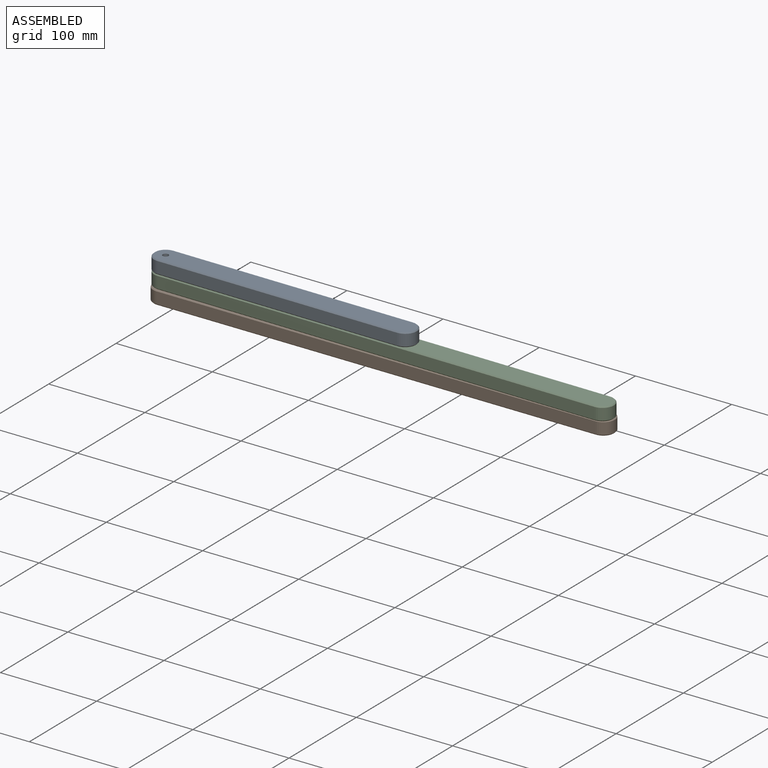
[diagram: assembled view]
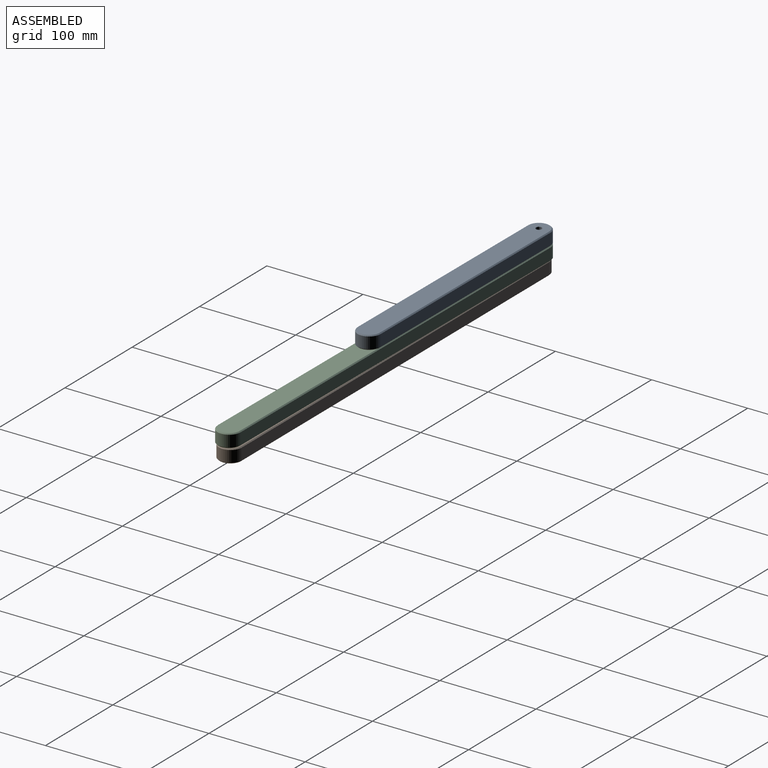
[diagram: assembled view, second angle]
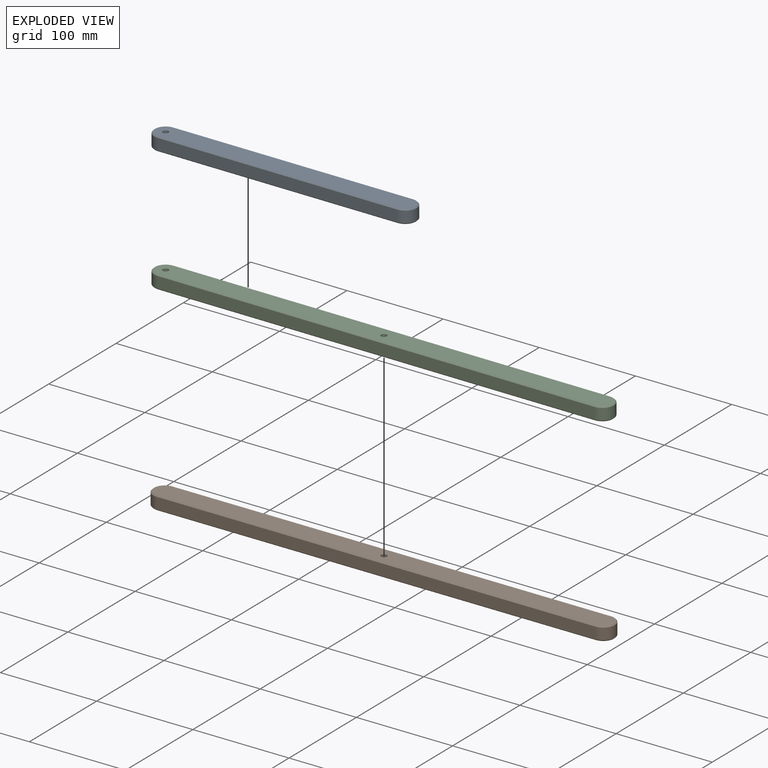
[diagram: exploded view]
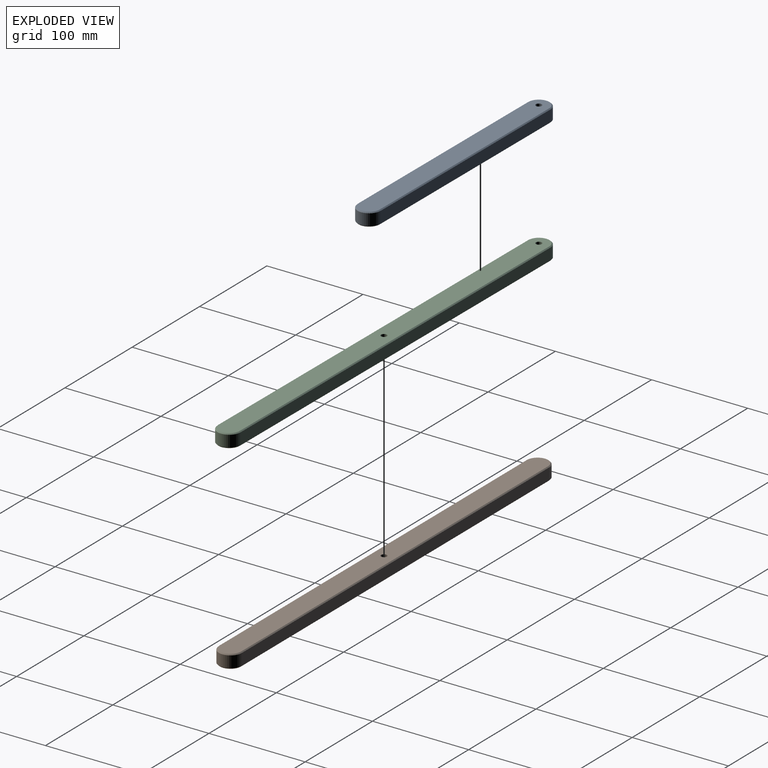
[diagram: exploded view, second angle]
ASSEMBLY  parts=3 mates=2
PART A: 15 faces, bbox 274x24x14 mm
  f0: cylinder r=12mm len=24mm, axis (0,0,-1), area 452.4mm2, adj f1,f3,f8,f12
  f1: plane 250x12mm, normal (0,-1,0), area 3000mm2, adj f0,f2,f7,f11
  f2: cylinder r=12mm len=24mm, axis (0,0,-1), area 452.4mm2, adj f1,f3,f9,f13
  f3: plane 250x12mm, normal (0,1,0), area 3000mm2, adj f0,f2,f10,f14
  f4: cylinder r=3mm len=14mm, axis (0,0,-1), area 263.9mm2, adj f5,f6
  f5: plane 272x22mm, normal (0,0,1), area 5851.9mm2, adj f4,f11,f12,f13,f14
  f6: plane 272x22mm, normal (0,0,-1), area 5851.9mm2, adj f4,f7,f8,f9,f10
  f7: plane 250x1mm, normal (0,-0.71,-0.71), area 353.6mm2, adj f1,f6,f8,f9
  f8: cone r=12mm half-angle=45deg, axis (0,0,1), area 51.1mm2, adj f0,f6,f7,f10
  f9: cone r=12mm half-angle=45deg, axis (0,0,1), area 51.1mm2, adj f2,f6,f7,f10
  f10: plane 250x1mm, normal (0,0.71,-0.71), area 353.6mm2, adj f3,f6,f8,f9
  f11: plane 250x1mm, normal (0,-0.71,0.71), area 353.6mm2, adj f1,f5,f12,f13
  f12: cone r=11mm half-angle=45deg, axis (0,0,-1), area 51.1mm2, adj f0,f5,f11,f14
  f13: cone r=11mm half-angle=45deg, axis (0,0,-1), area 51.1mm2, adj f2,f5,f11,f14
  f14: plane 250x1mm, normal (0,0.71,0.71), area 353.6mm2, adj f3,f5,f12,f13
PART B: 15 faces, bbox 480x24x14 mm
  f0: cylinder r=12mm len=24mm, axis (0,0,-1), area 452.4mm2, adj f1,f3,f7,f11
  f1: plane 456x12mm, normal (0,1,0), area 5472mm2, adj f0,f2,f8,f12
  f2: cylinder r=12mm len=24mm, axis (0,0,-1), area 452.4mm2, adj f1,f3,f10,f14
  f3: plane 456x12mm, normal (0,-1,0), area 5472mm2, adj f0,f2,f9,f13
  f4: cylinder r=3mm len=14mm, axis (0,0,-1), area 263.9mm2, adj f5,f6
  f5: plane 478x22mm, normal (0,0,1), area 10383.9mm2, adj f4,f11,f12,f13,f14
  f6: plane 478x22mm, normal (0,0,-1), area 10383.9mm2, adj f4,f7,f8,f9,f10
  f7: cone r=12mm half-angle=45deg, axis (0,0,1), area 51.1mm2, adj f0,f6,f8,f9
  f8: plane 456x1mm, normal (0,0.71,-0.71), area 644.9mm2, adj f1,f6,f7,f10
  f9: plane 456x1mm, normal (0,-0.71,-0.71), area 644.9mm2, adj f3,f6,f7,f10
  f10: cone r=12mm half-angle=45deg, axis (0,0,1), area 51.1mm2, adj f2,f6,f8,f9
  f11: cone r=11mm half-angle=45deg, axis (0,0,-1), area 51.1mm2, adj f0,f5,f12,f13
  f12: plane 456x1mm, normal (0,0.71,0.71), area 644.9mm2, adj f1,f5,f11,f14
  f13: plane 456x1mm, normal (0,-0.71,0.71), area 644.9mm2, adj f3,f5,f11,f14
  f14: cone r=11mm half-angle=45deg, axis (0,0,-1), area 51.1mm2, adj f2,f5,f12,f13
PART C: 16 faces, bbox 480x24x14 mm
  f0: cylinder r=12mm len=24mm, axis (0,0,-1), area 452.4mm2, adj f1,f4,f9,f12
  f1: plane 456x12mm, normal (0,-1,0), area 5472mm2, adj f0,f2,f8,f13
  f2: cylinder r=12mm len=24mm, axis (0,0,-1), area 452.4mm2, adj f1,f4,f10,f15
  f3: cylinder r=3mm len=14mm, axis (0,0,-1), area 263.9mm2, adj f6,f7
  f4: plane 456x12mm, normal (0,1,0), area 5472mm2, adj f0,f2,f11,f14
  f5: cylinder r=3mm len=14mm, axis (0,0,-1), area 263.9mm2, adj f6,f7
  f6: plane 478x22mm, normal (0,0,1), area 10355.6mm2, adj f3,f5,f12,f13,f14,f15
  f7: plane 478x22mm, normal (0,0,-1), area 10355.6mm2, adj f3,f5,f8,f9,f10,f11
  f8: plane 456x1mm, normal (0,-0.71,-0.71), area 644.9mm2, adj f1,f7,f9,f10
  f9: cone r=12mm half-angle=45deg, axis (0,0,1), area 51.1mm2, adj f0,f7,f8,f11
  f10: cone r=12mm half-angle=45deg, axis (0,0,1), area 51.1mm2, adj f2,f7,f8,f11
  f11: plane 456x1mm, normal (0,0.71,-0.71), area 644.9mm2, adj f4,f7,f9,f10
  f12: cone r=11mm half-angle=45deg, axis (0,0,-1), area 51.1mm2, adj f0,f6,f13,f14
  f13: plane 456x1mm, normal (0,-0.71,0.71), area 644.9mm2, adj f1,f6,f12,f15
  f14: plane 456x1mm, normal (0,0.71,0.71), area 644.9mm2, adj f4,f6,f12,f15
  f15: cone r=11mm half-angle=45deg, axis (0,0,-1), area 51.1mm2, adj f2,f6,f13,f14
PLACE A rot(axis=(0,0,1),179.7deg) t=(-42.62,-45.34,-11.75)mm
PLACE B t=(27.76,-15.82,-39.75)mm fixed
PLACE C rot(axis=(0,0,1),179.7deg) t=(89.2,-98.41,-25.75)mm
MATE revolute C.f2 <-> A.f2  axis (0,0,1) through (-169.4,-55.68,-11.75)mm
MATE revolute C.f3 <-> B.f4  axis (0,0,1) through (58.6,-57.02,-25.75)mm
